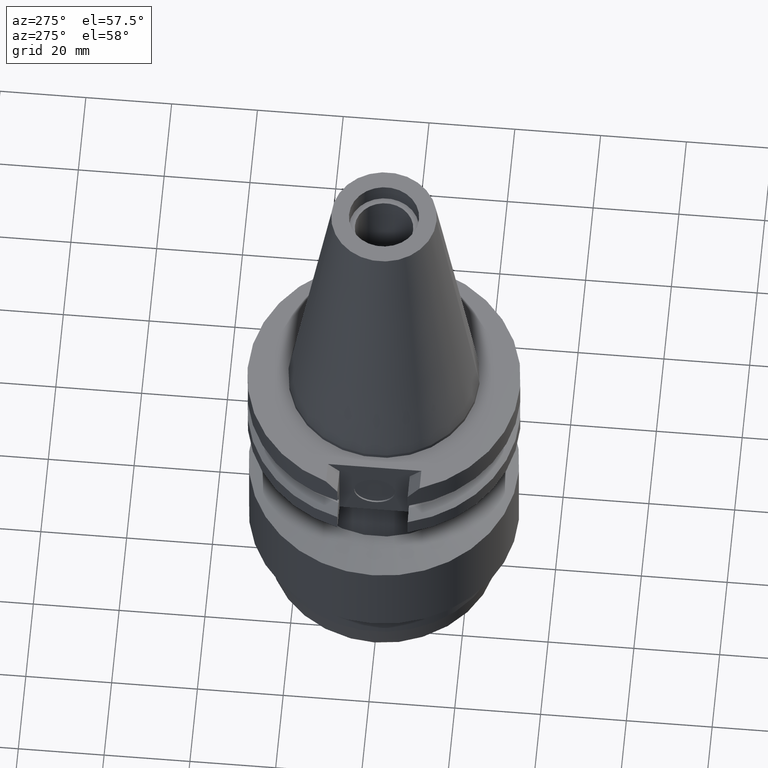
[diagram: clean part render]
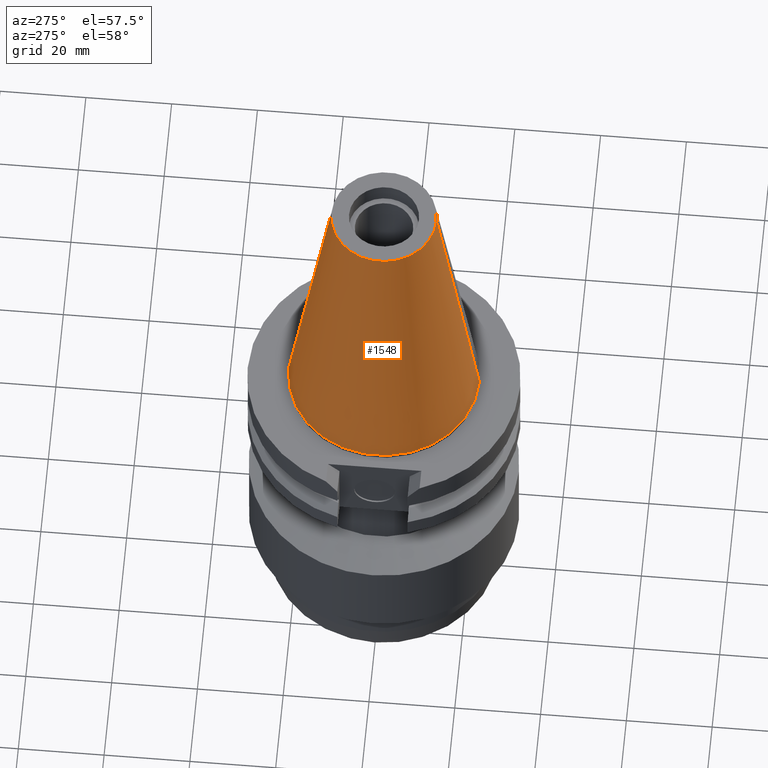
[diagram: same view with one face highlighted and labeled with its STEP entity id]
A machine part, auxiliary view. The second image highlights one B-rep face of the part: STEP entity #1548.
In plain terms, the highlighted conical surface has half-angle 8.297 deg.
Its self-contained STEP definition (entity closure, byte-faithful):
#17=CARTESIAN_POINT('',(0.E0,1.642557519356E-14,6.825E1));
#18=DIRECTION('',(0.E0,0.E0,-1.E0));
#19=DIRECTION('',(0.E0,-1.E0,0.E0));
#20=AXIS2_PLACEMENT_3D('',#17,#18,#19);
#50=DIRECTION('',(0.E0,-1.443069799457E-1,-9.895329683942E-1));
#51=VECTOR('',#50,6.897193138573E1);
#52=CARTESIAN_POINT('',(0.E0,-1.227186888070E1,6.825E1));
#53=LINE('',#52,#51);
#57=CARTESIAN_POINT('',(0.E0,1.642557519356E-14,-3.126388037344E-13));
#58=DIRECTION('',(0.E0,0.E0,-1.E0));
#59=DIRECTION('',(0.E0,-1.E0,0.E0));
#60=AXIS2_PLACEMENT_3D('',#57,#58,#59);
#65=DIRECTION('',(0.E0,1.443069799457E-1,-9.895329683942E-1));
#66=VECTOR('',#65,6.897193138573E1);
#67=CARTESIAN_POINT('',(0.E0,1.227186888070E1,6.825E1));
#68=LINE('',#67,#66);
#1302=CARTESIAN_POINT('',(0.E0,-1.227186888070E1,6.825E1));
#1303=CARTESIAN_POINT('',(0.E0,1.227186888070E1,6.825E1));
#1304=VERTEX_POINT('',#1302);
#1305=VERTEX_POINT('',#1303);
#1508=CARTESIAN_POINT('',(0.E0,2.2225E1,-1.705302565824E-13));
#1509=VERTEX_POINT('',#1508);
#1510=CARTESIAN_POINT('',(0.E0,-2.2225E1,-1.705302565824E-13));
#1511=VERTEX_POINT('',#1510);
#1534=CARTESIAN_POINT('',(0.E0,1.642557519356E-14,3.4125E1));
#1535=DIRECTION('',(0.E0,0.E0,-1.E0));
#1536=DIRECTION('',(0.E0,-1.E0,0.E0));
#1537=AXIS2_PLACEMENT_3D('',#1534,#1535,#1536);
#1538=CONICAL_SURFACE('',#1537,1.724843444035E1,8.29715E0);
#1540=ORIENTED_EDGE('',*,*,#1539,.F.);
#1541=ORIENTED_EDGE('',*,*,#1521,.F.);
#1543=ORIENTED_EDGE('',*,*,#1542,.T.);
#1545=ORIENTED_EDGE('',*,*,#1544,.T.);
#1546=EDGE_LOOP('',(#1540,#1541,#1543,#1545));
#1547=FACE_OUTER_BOUND('',#1546,.F.);
#21=CIRCLE('',#20,1.227186888070E1);
#61=CIRCLE('',#60,2.2225E1);
#1521=EDGE_CURVE('',#1304,#1305,#21,.T.);
#1539=EDGE_CURVE('',#1305,#1509,#68,.T.);
#1542=EDGE_CURVE('',#1304,#1511,#53,.T.);
#1544=EDGE_CURVE('',#1511,#1509,#61,.T.);
#1548=ADVANCED_FACE('',(#1547),#1538,.T.);